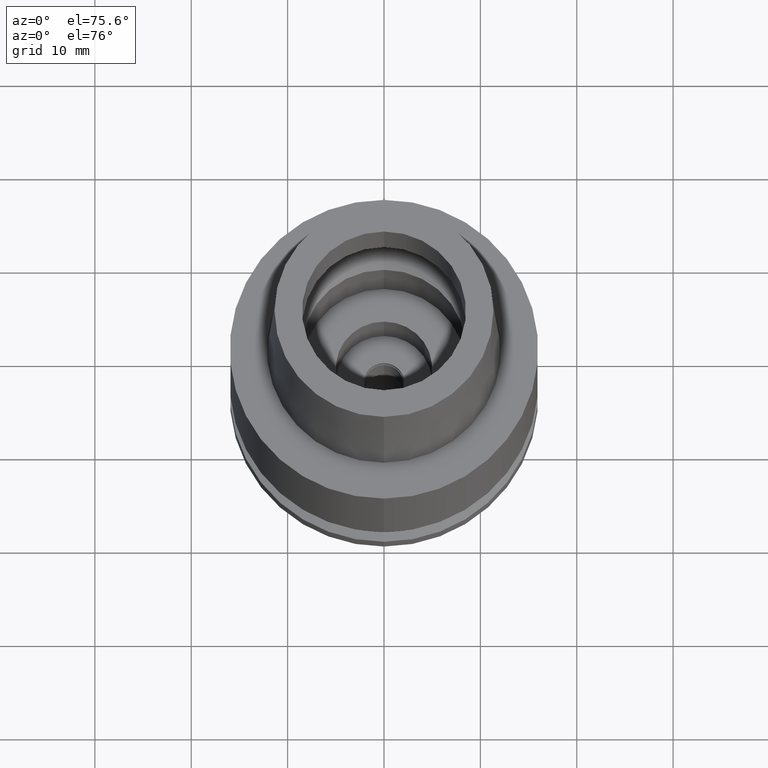
[diagram: clean part render]
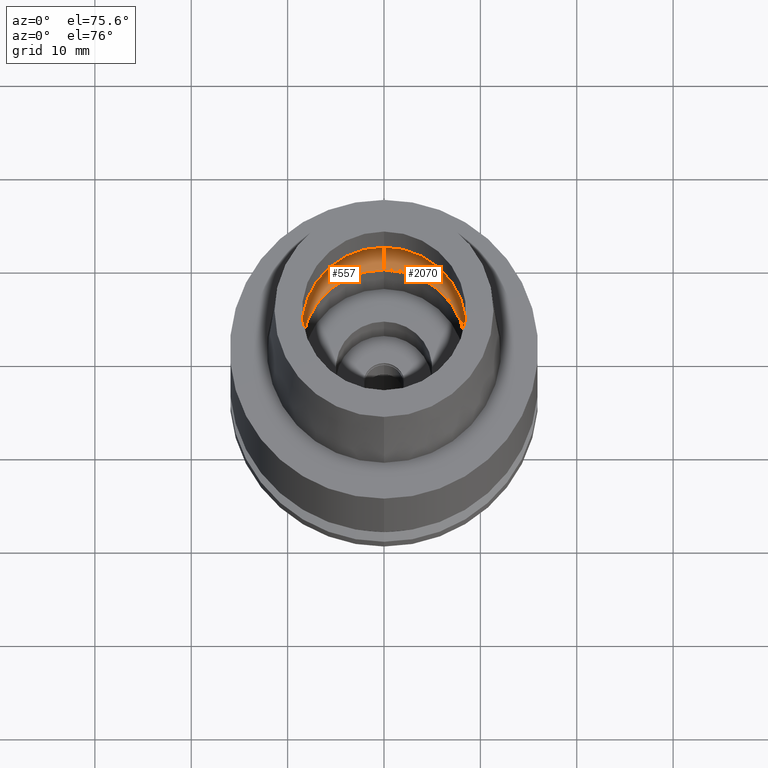
[diagram: same view with one multi-face feature highlighted, each face labeled with its STEP entity id]
A machine part, auxiliary view. The highlighted faces form ONE feature: a constant-radius fillet chain: 2 tangent blend faces with common blend radius 4 mm. The faces share edges in the B-rep.
Their STEP definitions:
[1] entity #557 (Torus):
#557 = ADVANCED_FACE ( 'NONE', ( #2075 ), #1622, .F. ) ;
#666 = ORIENTED_EDGE ( 'NONE', *, *, #1446, .F. ) ;
#701 = CARTESIAN_POINT ( 'NONE',  ( 0.0000000000000000000, 8.500000000000000000, 0.04981086116926999874 ) ) ;
#726 = DIRECTION ( 'NONE',  ( -1.000000000000000000, 0.0000000000000000000, 0.0000000000000000000 ) ) ;
#736 = VERTEX_POINT ( 'NONE', #1592 ) ;
#753 = DIRECTION ( 'NONE',  ( 0.0000000000000000000, 0.0000000000000000000, -1.000000000000000000 ) ) ;
#764 = DIRECTION ( 'NONE',  ( 0.0000000000000000000, 1.000000000000000000, 0.0000000000000000000 ) ) ;
#819 = AXIS2_PLACEMENT_3D ( 'NONE', #1774, #726, #1154 ) ;
#841 = EDGE_LOOP ( 'NONE', ( #666, #2449, #1669, #2399 ) ) ;
#842 = DIRECTION ( 'NONE',  ( 0.0000000000000000000, 1.000000000000000000, 0.0000000000000000000 ) ) ;
#870 = AXIS2_PLACEMENT_3D ( 'NONE', #1052, #1893, #842 ) ;
#914 = CIRCLE ( 'NONE', #1397, 10.25000000000000000 ) ;
#1014 = VERTEX_POINT ( 'NONE', #2140 ) ;
#1052 = CARTESIAN_POINT ( 'NONE',  ( 0.0000000000000000000, 0.0000000000000000000, 3.357000000000000206 ) ) ;
#1154 = DIRECTION ( 'NONE',  ( 0.0000000000000000000, -0.5624999999999932276, -0.8267972847076892062 ) ) ;
#1315 = CIRCLE ( 'NONE', #2652, 3.999999999999999112 ) ;
#1319 = VERTEX_POINT ( 'NONE', #2232 ) ;
#1397 = AXIS2_PLACEMENT_3D ( 'NONE', #2162, #753, #1585 ) ;
#1446 = EDGE_CURVE ( 'NONE', #736, #1319, #914, .T. ) ;
#1447 = DIRECTION ( 'NONE',  ( 0.0000000000000000000, 0.5624999999999932276, -0.8267972847076892062 ) ) ;
#1585 = DIRECTION ( 'NONE',  ( 0.0000000000000000000, -1.000000000000000000, 0.0000000000000000000 ) ) ;
#1592 = CARTESIAN_POINT ( 'NONE',  ( 0.0000000000000000000, -10.25000000000000000, 3.357000000000000206 ) ) ;
#1622 = TOROIDAL_SURFACE ( 'NONE', #870, 6.250000000000000000, 4.000000000000000000 ) ;
#1669 = ORIENTED_EDGE ( 'NONE', *, *, #1674, .F. ) ;
#1674 = EDGE_CURVE ( 'NONE', #2494, #1014, #1737, .T. ) ;
#1723 = EDGE_CURVE ( 'NONE', #1014, #736, #1878, .T. ) ;
#1737 = CIRCLE ( 'NONE', #2426, 8.500000000000000000 ) ;
#1763 = DIRECTION ( 'NONE',  ( 0.0000000000000000000, 0.0000000000000000000, 1.000000000000000000 ) ) ;
#1774 = CARTESIAN_POINT ( 'NONE',  ( 0.0000000000000000000, -6.250000000000000000, 3.357000000000000206 ) ) ;
#1878 = CIRCLE ( 'NONE', #819, 3.999999999999999112 ) ;
#1893 = DIRECTION ( 'NONE',  ( 0.0000000000000000000, 0.0000000000000000000, 1.000000000000000000 ) ) ;
#2020 = CARTESIAN_POINT ( 'NONE',  ( 0.0000000000000000000, 0.0000000000000000000, 0.04981086116925999979 ) ) ;
#2075 = FACE_OUTER_BOUND ( 'NONE', #841, .T. ) ;
#2140 = CARTESIAN_POINT ( 'NONE',  ( 0.0000000000000000000, -8.500000000000000000, 0.04981086116925999979 ) ) ;
#2162 = CARTESIAN_POINT ( 'NONE',  ( 0.0000000000000000000, 0.0000000000000000000, 3.357000000000000206 ) ) ;
#2232 = CARTESIAN_POINT ( 'NONE',  ( 0.0000000000000000000, 10.25000000000000000, 3.357000000000000206 ) ) ;
#2271 = CARTESIAN_POINT ( 'NONE',  ( 0.0000000000000000000, 6.250000000000000000, 3.357000000000000206 ) ) ;
#2310 = DIRECTION ( 'NONE',  ( 1.000000000000000000, 0.0000000000000000000, 0.0000000000000000000 ) ) ;
#2396 = EDGE_CURVE ( 'NONE', #2494, #1319, #1315, .T. ) ;
#2399 = ORIENTED_EDGE ( 'NONE', *, *, #2396, .T. ) ;
#2426 = AXIS2_PLACEMENT_3D ( 'NONE', #2020, #1763, #764 ) ;
#2449 = ORIENTED_EDGE ( 'NONE', *, *, #1723, .F. ) ;
#2494 = VERTEX_POINT ( 'NONE', #701 ) ;
#2652 = AXIS2_PLACEMENT_3D ( 'NONE', #2271, #2310, #1447 ) ;
[2] entity #2070 (Torus):
#73 = TOROIDAL_SURFACE ( 'NONE', #1701, 6.250000000000000000, 4.000000000000000000 ) ;
#136 = DIRECTION ( 'NONE',  ( 0.0000000000000000000, 0.0000000000000000000, 1.000000000000000000 ) ) ;
#150 = CIRCLE ( 'NONE', #1341, 8.500000000000000000 ) ;
#247 = ORIENTED_EDGE ( 'NONE', *, *, #2396, .F. ) ;
#263 = CARTESIAN_POINT ( 'NONE',  ( 0.0000000000000000000, 0.0000000000000000000, 3.357000000000000206 ) ) ;
#638 = DIRECTION ( 'NONE',  ( 0.0000000000000000000, 0.0000000000000000000, 1.000000000000000000 ) ) ;
#701 = CARTESIAN_POINT ( 'NONE',  ( 0.0000000000000000000, 8.500000000000000000, 0.04981086116926999874 ) ) ;
#726 = DIRECTION ( 'NONE',  ( -1.000000000000000000, 0.0000000000000000000, 0.0000000000000000000 ) ) ;
#736 = VERTEX_POINT ( 'NONE', #1592 ) ;
#819 = AXIS2_PLACEMENT_3D ( 'NONE', #1774, #726, #1154 ) ;
#875 = DIRECTION ( 'NONE',  ( 0.0000000000000000000, 1.000000000000000000, 0.0000000000000000000 ) ) ;
#976 = DIRECTION ( 'NONE',  ( 0.0000000000000000000, -1.000000000000000000, 0.0000000000000000000 ) ) ;
#998 = CIRCLE ( 'NONE', #2517, 10.25000000000000000 ) ;
#1014 = VERTEX_POINT ( 'NONE', #2140 ) ;
#1154 = DIRECTION ( 'NONE',  ( 0.0000000000000000000, -0.5624999999999932276, -0.8267972847076892062 ) ) ;
#1290 = EDGE_CURVE ( 'NONE', #1014, #2494, #150, .T. ) ;
#1315 = CIRCLE ( 'NONE', #2652, 3.999999999999999112 ) ;
#1319 = VERTEX_POINT ( 'NONE', #2232 ) ;
#1341 = AXIS2_PLACEMENT_3D ( 'NONE', #1778, #136, #976 ) ;
#1438 = ORIENTED_EDGE ( 'NONE', *, *, #1290, .F. ) ;
#1447 = DIRECTION ( 'NONE',  ( 0.0000000000000000000, 0.5624999999999932276, -0.8267972847076892062 ) ) ;
#1511 = FACE_OUTER_BOUND ( 'NONE', #2071, .T. ) ;
#1592 = CARTESIAN_POINT ( 'NONE',  ( 0.0000000000000000000, -10.25000000000000000, 3.357000000000000206 ) ) ;
#1699 = CARTESIAN_POINT ( 'NONE',  ( 0.0000000000000000000, 0.0000000000000000000, 3.357000000000000206 ) ) ;
#1701 = AXIS2_PLACEMENT_3D ( 'NONE', #1699, #638, #875 ) ;
#1723 = EDGE_CURVE ( 'NONE', #1014, #736, #1878, .T. ) ;
#1765 = DIRECTION ( 'NONE',  ( 0.0000000000000000000, 0.0000000000000000000, -1.000000000000000000 ) ) ;
#1774 = CARTESIAN_POINT ( 'NONE',  ( 0.0000000000000000000, -6.250000000000000000, 3.357000000000000206 ) ) ;
#1778 = CARTESIAN_POINT ( 'NONE',  ( 0.0000000000000000000, 0.0000000000000000000, 0.04981086116925999979 ) ) ;
#1878 = CIRCLE ( 'NONE', #819, 3.999999999999999112 ) ;
#2070 = ADVANCED_FACE ( 'NONE', ( #1511 ), #73, .F. ) ;
#2071 = EDGE_LOOP ( 'NONE', ( #1438, #2322, #2557, #247 ) ) ;
#2140 = CARTESIAN_POINT ( 'NONE',  ( 0.0000000000000000000, -8.500000000000000000, 0.04981086116925999979 ) ) ;
#2232 = CARTESIAN_POINT ( 'NONE',  ( 0.0000000000000000000, 10.25000000000000000, 3.357000000000000206 ) ) ;
#2271 = CARTESIAN_POINT ( 'NONE',  ( 0.0000000000000000000, 6.250000000000000000, 3.357000000000000206 ) ) ;
#2310 = DIRECTION ( 'NONE',  ( 1.000000000000000000, 0.0000000000000000000, 0.0000000000000000000 ) ) ;
#2321 = DIRECTION ( 'NONE',  ( 0.0000000000000000000, 1.000000000000000000, 0.0000000000000000000 ) ) ;
#2322 = ORIENTED_EDGE ( 'NONE', *, *, #1723, .T. ) ;
#2396 = EDGE_CURVE ( 'NONE', #2494, #1319, #1315, .T. ) ;
#2494 = VERTEX_POINT ( 'NONE', #701 ) ;
#2517 = AXIS2_PLACEMENT_3D ( 'NONE', #263, #1765, #2321 ) ;
#2557 = ORIENTED_EDGE ( 'NONE', *, *, #2663, .F. ) ;
#2652 = AXIS2_PLACEMENT_3D ( 'NONE', #2271, #2310, #1447 ) ;
#2663 = EDGE_CURVE ( 'NONE', #1319, #736, #998, .T. ) ;